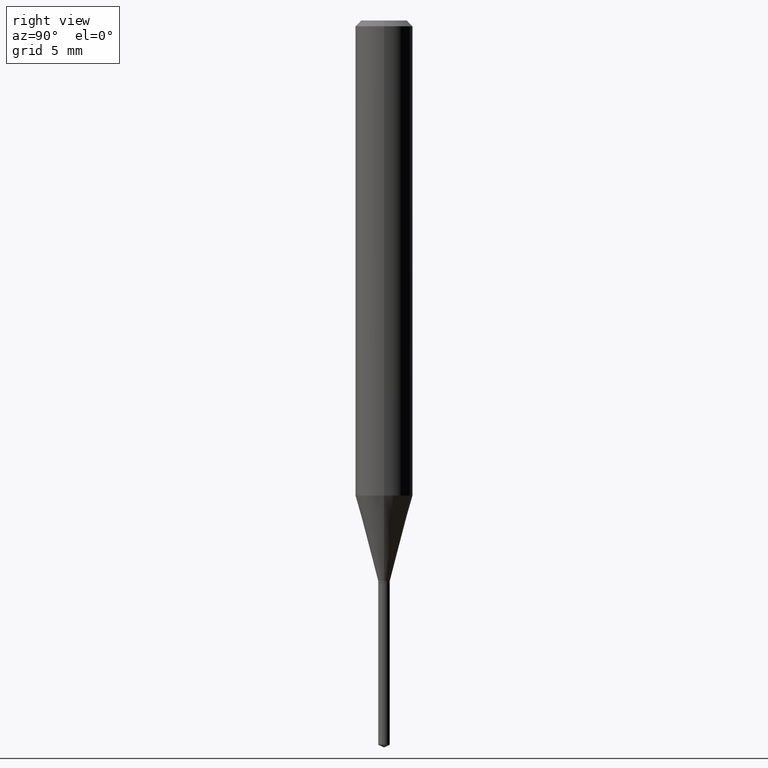
[diagram: clean part render]
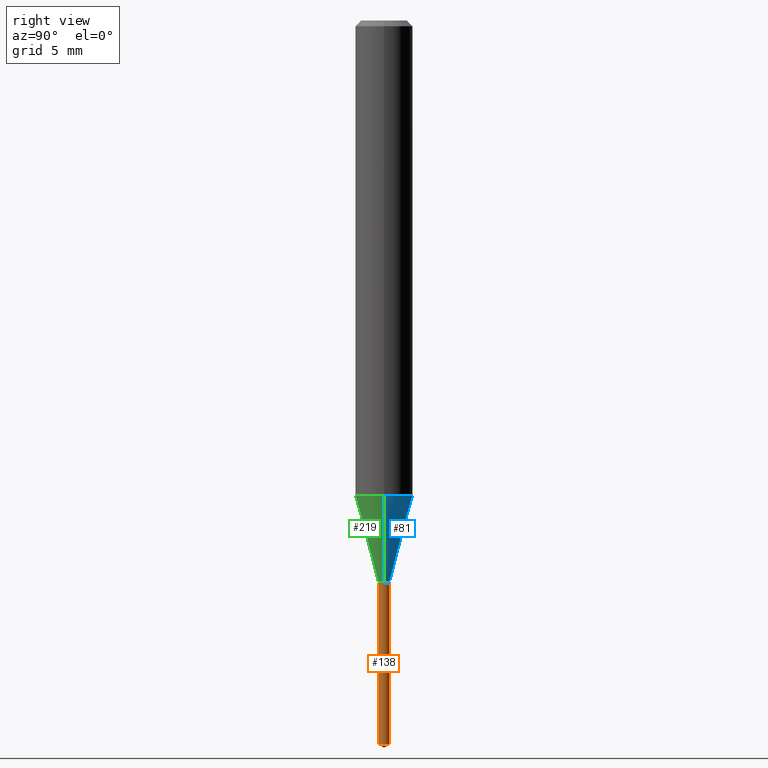
[diagram: same view with three faces highlighted in distinct colors, each labeled with its STEP entity id]
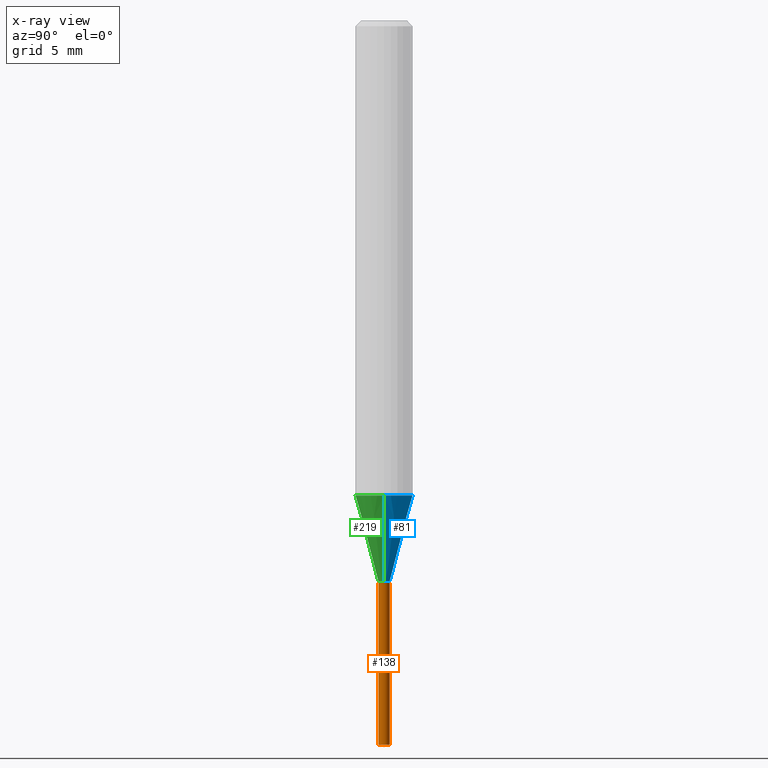
[diagram: x-ray of the same camera — body ghosted, the three highlighted faces saturated]
A machine part, right view with three faces highlighted in distinct colors.
The next image is the same camera in x-ray (body ghosted, the three faces saturated) — at least one of them is partly hidden behind the body in this view.
Their STEP definitions:

[orange] entity #138 — the highlighted cylindrical surface (edge-blend (fillet) strip) has radius 0.2997 mm, axis along (-0, 0, 1).
#3 = CARTESIAN_POINT ( 'NONE',  ( 3.642354130892786976E-29, -5.208483163453085578E-15, -1.490597569633770991 ) ) ;
#7 = AXIS2_PLACEMENT_3D ( 'NONE', #32, #378, #296 ) ;
#8 = DIRECTION ( 'NONE',  ( -2.436895557736890074E-29, 3.503758718580032420E-15, 1.000000000000000000 ) ) ;
#32 = CARTESIAN_POINT ( 'NONE',  ( 2.830630143159295633E-29, -4.041389649710940900E-15, -1.157499999999999973 ) ) ;
#36 = DIRECTION ( 'NONE',  ( -2.436895557736890355E-29, 3.503758718580032420E-15, 1.000000000000000000 ) ) ;
#82 = CARTESIAN_POINT ( 'NONE',  ( -8.239895959666965094E-17, -0.01180000000000404510, -1.157499999999999973 ) ) ;
#84 = AXIS2_PLACEMENT_3D ( 'NONE', #3, #36, #153 ) ;
#91 = ORIENTED_EDGE ( 'NONE', *, *, #177, .F. ) ;
#95 = ORIENTED_EDGE ( 'NONE', *, *, #142, .T. ) ;
#102 = VERTEX_POINT ( 'NONE', #196 ) ;
#126 = LINE ( 'NONE', #82, #191 ) ;
#129 = CARTESIAN_POINT ( 'NONE',  ( 8.384404281972834178E-17, 0.01179999999999595782, -1.157499999999999973 ) ) ;
#131 = EDGE_LOOP ( 'NONE', ( #95, #428, #299, #91 ) ) ;
#138 = ADVANCED_FACE ( 'NONE', ( #449 ), #185, .T. ) ;
#142 = EDGE_CURVE ( 'NONE', #359, #365, #298, .T. ) ;
#147 = CARTESIAN_POINT ( 'NONE',  ( 8.384404281972829247E-17, 0.01179999999999479902, -1.490597569633770991 ) ) ;
#153 = DIRECTION ( 'NONE',  ( -6.982962677686265922E-15, -1.000000000000000000, 0.000000000000000000 ) ) ;
#171 = EDGE_CURVE ( 'NONE', #365, #325, #313, .T. ) ;
#177 = EDGE_CURVE ( 'NONE', #359, #102, #126, .T. ) ;
#178 = DIRECTION ( 'NONE',  ( -2.436895557736890355E-29, 3.503758718580032420E-15, 1.000000000000000000 ) ) ;
#180 = DIRECTION ( 'NONE',  ( -6.982962677686265133E-15, -1.000000000000000000, 0.000000000000000000 ) ) ;
#182 = VECTOR ( 'NONE', #8, 39.37007874015748143 ) ;
#185 = CYLINDRICAL_SURFACE ( 'NONE', #7, 0.01180000000000000319 ) ;
#191 = VECTOR ( 'NONE', #241, 39.37007874015748143 ) ;
#196 = CARTESIAN_POINT ( 'NONE',  ( -8.239895959666962629E-17, -0.01180000000000404337, -1.157499999999999973 ) ) ;
#241 = DIRECTION ( 'NONE',  ( -2.436895557736890074E-29, 3.503758718580032420E-15, 1.000000000000000000 ) ) ;
#296 = DIRECTION ( 'NONE',  ( -6.982962677686265922E-15, -1.000000000000000000, 0.000000000000000000 ) ) ;
#297 = CARTESIAN_POINT ( 'NONE',  ( -8.239895959666156512E-17, -0.01180000000000521604, -1.490597569633770991 ) ) ;
#298 = CIRCLE ( 'NONE', #84, 0.01180000000000000493 ) ;
#299 = ORIENTED_EDGE ( 'NONE', *, *, #393, .F. ) ;
#310 = CARTESIAN_POINT ( 'NONE',  ( 8.384404281972014502E-17, 0.01179999999999596129, -1.157499999999999973 ) ) ;
#313 = LINE ( 'NONE', #310, #182 ) ;
#325 = VERTEX_POINT ( 'NONE', #129 ) ;
#328 = CARTESIAN_POINT ( 'NONE',  ( 2.830630143159295633E-29, -4.041389649710940900E-15, -1.157499999999999973 ) ) ;
#359 = VERTEX_POINT ( 'NONE', #297 ) ;
#365 = VERTEX_POINT ( 'NONE', #147 ) ;
#378 = DIRECTION ( 'NONE',  ( -2.436895557736890355E-29, 3.503758718580032420E-15, 1.000000000000000000 ) ) ;
#379 = CIRCLE ( 'NONE', #465, 0.01180000000000000146 ) ;
#393 = EDGE_CURVE ( 'NONE', #102, #325, #379, .T. ) ;
#428 = ORIENTED_EDGE ( 'NONE', *, *, #171, .T. ) ;
#449 = FACE_OUTER_BOUND ( 'NONE', #131, .T. ) ;
#465 = AXIS2_PLACEMENT_3D ( 'NONE', #328, #178, #180 ) ;

[blue] entity #81 — the highlighted conical surface has half-angle 15 deg.
#10 = EDGE_CURVE ( 'NONE', #190, #469, #73, .T. ) ;
#29 = VERTEX_POINT ( 'NONE', #340 ) ;
#33 = CARTESIAN_POINT ( 'NONE',  ( 0.05905000000000011628, -3.825827684443467023E-15, -0.9776605993423704843 ) ) ;
#73 = LINE ( 'NONE', #333, #249 ) ;
#81 = ADVANCED_FACE ( 'NONE', ( #223 ), #124, .T. ) ;
#111 = DIRECTION ( 'NONE',  ( 1.000000000000000000, -6.982962677686258033E-15, 0.000000000000000000 ) ) ;
#124 = CONICAL_SURFACE ( 'NONE', #489, 0.01180000000000000146, 0.2617993877991500740 ) ;
#133 = EDGE_LOOP ( 'NONE', ( #331, #472, #135, #176 ) ) ;
#135 = ORIENTED_EDGE ( 'NONE', *, *, #302, .F. ) ;
#144 = CARTESIAN_POINT ( 'NONE',  ( -0.01180000000000000146, -3.950562644213562832E-15, -1.153999999999999915 ) ) ;
#176 = ORIENTED_EDGE ( 'NONE', *, *, #10, .F. ) ;
#187 = DIRECTION ( 'NONE',  ( -2.445468806185136597E-29, 3.491481338843145583E-15, 1.000000000000000000 ) ) ;
#190 = VERTEX_POINT ( 'NONE', #386 ) ;
#203 = LINE ( 'NONE', #278, #452 ) ;
#210 = EDGE_CURVE ( 'NONE', #368, #29, #203, .T. ) ;
#223 = FACE_OUTER_BOUND ( 'NONE', #133, .T. ) ;
#240 = DIRECTION ( 'NONE',  ( -2.445468806185136597E-29, 3.491481338843145583E-15, 1.000000000000000000 ) ) ;
#242 = CARTESIAN_POINT ( 'NONE',  ( 2.390838498728031811E-29, -3.413483738326091708E-15, -0.9776605993423704843 ) ) ;
#244 = CIRCLE ( 'NONE', #405, 0.05905000000000013016 ) ;
#249 = VECTOR ( 'NONE', #410, 39.37007874015747433 ) ;
#267 = DIRECTION ( 'NONE',  ( 1.000000000000000000, -6.982962677686258033E-15, 0.000000000000000000 ) ) ;
#278 = CARTESIAN_POINT ( 'NONE',  ( -0.01180000000000000146, -3.945325422205298321E-15, -1.153999999999999915 ) ) ;
#290 = EDGE_CURVE ( 'NONE', #190, #368, #455, .T. ) ;
#302 = EDGE_CURVE ( 'NONE', #469, #29, #244, .T. ) ;
#331 = ORIENTED_EDGE ( 'NONE', *, *, #290, .T. ) ;
#333 = CARTESIAN_POINT ( 'NONE',  ( 0.01180000000000000146, -4.111568424621687711E-15, -1.153999999999999915 ) ) ;
#340 = CARTESIAN_POINT ( 'NONE',  ( -0.05905000000000011628, -2.993908252859751821E-15, -0.9776605993423704843 ) ) ;
#368 = VERTEX_POINT ( 'NONE', #144 ) ;
#386 = CARTESIAN_POINT ( 'NONE',  ( 0.01180000000000000146, -4.111568424621687711E-15, -1.153999999999999915 ) ) ;
#388 = DIRECTION ( 'NONE',  ( 1.000000000000000000, -6.982962677686265133E-15, 0.000000000000000000 ) ) ;
#405 = AXIS2_PLACEMENT_3D ( 'NONE', #242, #240, #388 ) ;
#410 = DIRECTION ( 'NONE',  ( 0.2588190451025213501, 1.565188264969621968E-15, 0.9659258262890682012 ) ) ;
#415 = DIRECTION ( 'NONE',  ( -0.2588190451025213501, 5.211531920934551042E-15, 0.9659258262890682012 ) ) ;
#431 = AXIS2_PLACEMENT_3D ( 'NONE', #466, #463, #267 ) ;
#452 = VECTOR ( 'NONE', #415, 39.37007874015747433 ) ;
#455 = CIRCLE ( 'NONE', #431, 0.01180000000000000146 ) ;
#463 = DIRECTION ( 'NONE',  ( -2.445468806185136597E-29, 3.491481338843145583E-15, 1.000000000000000000 ) ) ;
#466 = CARTESIAN_POINT ( 'NONE',  ( 2.822071002337647144E-29, -4.029169465024989587E-15, -1.153999999999999915 ) ) ;
#469 = VERTEX_POINT ( 'NONE', #33 ) ;
#472 = ORIENTED_EDGE ( 'NONE', *, *, #210, .T. ) ;
#487 = CARTESIAN_POINT ( 'NONE',  ( 2.822071002337647144E-29, -4.029169465024989587E-15, -1.153999999999999915 ) ) ;
#489 = AXIS2_PLACEMENT_3D ( 'NONE', #487, #187, #111 ) ;

[green] entity #219 — the highlighted conical surface has half-angle 15 deg.
#10 = EDGE_CURVE ( 'NONE', #190, #469, #73, .T. ) ;
#16 = DIRECTION ( 'NONE',  ( -2.445468806185136597E-29, 3.491481338843145583E-15, 1.000000000000000000 ) ) ;
#29 = VERTEX_POINT ( 'NONE', #340 ) ;
#33 = CARTESIAN_POINT ( 'NONE',  ( 0.05905000000000011628, -3.825827684443467023E-15, -0.9776605993423704843 ) ) ;
#73 = LINE ( 'NONE', #333, #249 ) ;
#80 = DIRECTION ( 'NONE',  ( 1.000000000000000000, -6.982962677686258033E-15, 0.000000000000000000 ) ) ;
#83 = ORIENTED_EDGE ( 'NONE', *, *, #210, .F. ) ;
#99 = DIRECTION ( 'NONE',  ( -2.445468806185136597E-29, 3.491481338843145583E-15, 1.000000000000000000 ) ) ;
#144 = CARTESIAN_POINT ( 'NONE',  ( -0.01180000000000000146, -3.950562644213562832E-15, -1.153999999999999915 ) ) ;
#164 = CARTESIAN_POINT ( 'NONE',  ( 2.822071002337647144E-29, -4.029169465024989587E-15, -1.153999999999999915 ) ) ;
#181 = ORIENTED_EDGE ( 'NONE', *, *, #485, .T. ) ;
#190 = VERTEX_POINT ( 'NONE', #386 ) ;
#192 = CIRCLE ( 'NONE', #438, 0.01180000000000000146 ) ;
#203 = LINE ( 'NONE', #278, #452 ) ;
#205 = DIRECTION ( 'NONE',  ( 1.000000000000000000, -6.982962677686258033E-15, 0.000000000000000000 ) ) ;
#210 = EDGE_CURVE ( 'NONE', #368, #29, #203, .T. ) ;
#211 = AXIS2_PLACEMENT_3D ( 'NONE', #407, #364, #229 ) ;
#218 = EDGE_LOOP ( 'NONE', ( #83, #181, #461, #363 ) ) ;
#219 = ADVANCED_FACE ( 'NONE', ( #355 ), #330, .T. ) ;
#229 = DIRECTION ( 'NONE',  ( 1.000000000000000000, -6.982962677686265133E-15, 0.000000000000000000 ) ) ;
#249 = VECTOR ( 'NONE', #410, 39.37007874015747433 ) ;
#278 = CARTESIAN_POINT ( 'NONE',  ( -0.01180000000000000146, -3.945325422205298321E-15, -1.153999999999999915 ) ) ;
#292 = CARTESIAN_POINT ( 'NONE',  ( 2.822071002337647144E-29, -4.029169465024989587E-15, -1.153999999999999915 ) ) ;
#330 = CONICAL_SURFACE ( 'NONE', #339, 0.01180000000000000146, 0.2617993877991500740 ) ;
#333 = CARTESIAN_POINT ( 'NONE',  ( 0.01180000000000000146, -4.111568424621687711E-15, -1.153999999999999915 ) ) ;
#339 = AXIS2_PLACEMENT_3D ( 'NONE', #164, #16, #205 ) ;
#340 = CARTESIAN_POINT ( 'NONE',  ( -0.05905000000000011628, -2.993908252859751821E-15, -0.9776605993423704843 ) ) ;
#355 = FACE_OUTER_BOUND ( 'NONE', #218, .T. ) ;
#363 = ORIENTED_EDGE ( 'NONE', *, *, #420, .F. ) ;
#364 = DIRECTION ( 'NONE',  ( -2.445468806185136597E-29, 3.491481338843145583E-15, 1.000000000000000000 ) ) ;
#368 = VERTEX_POINT ( 'NONE', #144 ) ;
#372 = CIRCLE ( 'NONE', #211, 0.05905000000000013016 ) ;
#386 = CARTESIAN_POINT ( 'NONE',  ( 0.01180000000000000146, -4.111568424621687711E-15, -1.153999999999999915 ) ) ;
#407 = CARTESIAN_POINT ( 'NONE',  ( 2.390838498728031811E-29, -3.413483738326091708E-15, -0.9776605993423704843 ) ) ;
#410 = DIRECTION ( 'NONE',  ( 0.2588190451025213501, 1.565188264969621968E-15, 0.9659258262890682012 ) ) ;
#415 = DIRECTION ( 'NONE',  ( -0.2588190451025213501, 5.211531920934551042E-15, 0.9659258262890682012 ) ) ;
#420 = EDGE_CURVE ( 'NONE', #29, #469, #372, .T. ) ;
#438 = AXIS2_PLACEMENT_3D ( 'NONE', #292, #99, #80 ) ;
#452 = VECTOR ( 'NONE', #415, 39.37007874015747433 ) ;
#461 = ORIENTED_EDGE ( 'NONE', *, *, #10, .T. ) ;
#469 = VERTEX_POINT ( 'NONE', #33 ) ;
#485 = EDGE_CURVE ( 'NONE', #368, #190, #192, .T. ) ;